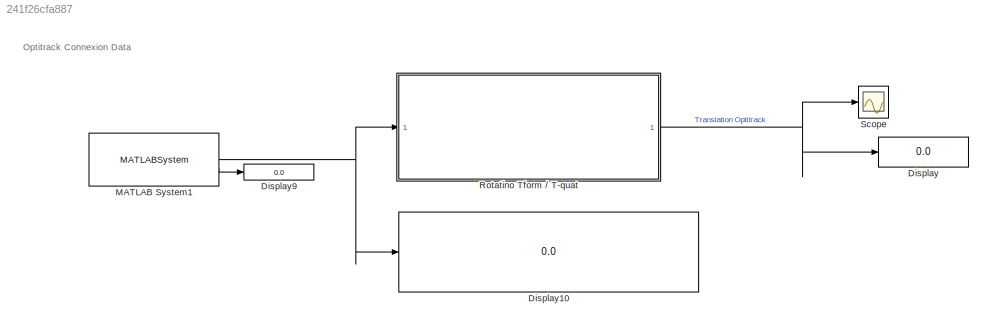
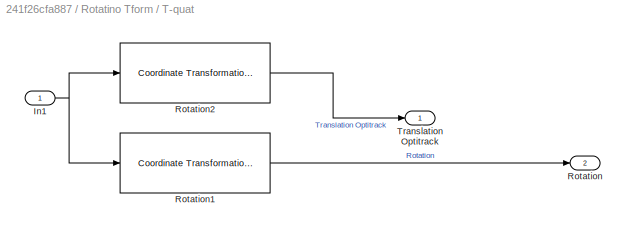
MODEL slx_241f26cfa887
KIND model
CONFIG AbsTol = auto
CONFIG EnableMultiTasking = off
CONFIG FixedStep = auto
CONFIG MaxStep = auto
CONFIG MinStep = auto
CONFIG RelTol = 1e-3
CONFIG SampleTimeConstraint = Unconstrained
CONFIG SolverName = VariableStepAuto
CONFIG StartTime = 0.0
CONFIG StopTime = 10.0
BLOCK [Display] Display
  Decimation = 1
BLOCK [Display] Display10
  Decimation = 1
BLOCK [Display] Display9
  Decimation = 1
BLOCK [MATLABSystem] MATLAB System1
  ClientIP = 127.0.0.1
  HostIP = 127.0.0.1
  MaskDisplay = disp('OptilinkSystem');\nport_label('output',1,'Drones data');\nport_label('output',2,'Connected');
  MaskType = OptilinkSystem
  SimulateUsing = Interpreted execution
  System = OptilinkSystem
BLOCK [SubSystem] Rotatino Tform //  T-quat
BLOCK [Inport] Rotatino Tform //  T-quat/In1
BLOCK [Outport] Rotatino Tform //  T-quat/Rotation
  Port = 2
BLOCK [Reference] Rotatino Tform //  T-quat/Rotation1  REF=robotcorelib/Coordinate Transformation Conversion
  LibrarySourceBlock = uavutilslib/Coordinate Transformation Conversion
  SourceBlock = robotcorelib/Coordinate Transformation Conversion
  SourceType = robotics.slcore.internal.block.CoordinateTransformationConversion
BLOCK [Reference] Rotatino Tform //  T-quat/Rotation2  REF=robotcorelib/Coordinate Transformation Conversion
  LibrarySourceBlock = uavutilslib/Coordinate Transformation Conversion
  SourceBlock = robotcorelib/Coordinate Transformation Conversion
  SourceType = robotics.slcore.internal.block.CoordinateTransformationConversion
BLOCK [Outport] Rotatino Tform //  T-quat/Translation Optitrack
BLOCK [Scope] Scope
  Floating = off
  NumInputPorts = 1
  ScopeSpecificationString = Simulink.scopes.TimeScopeBlockCfg('CurrentConfiguration', extmgr.ConfigurationSet(extmgr.Configuration('Core','General UI',true),extmgr.Configuration('Core','Source UI',true),extmgr.Configuration('Sources','WiredSimulink',true),extmgr.Configuration('Visuals','Time Domain',true),extmgr.Configuration('Tools','Plot Navigation',true),extmgr.Configuration('Tools','Measurements',true)),'Version','2024a'...<+1ch>
ANNOTATION (root): Optitrack Connexion Data
NET MATLAB System1:1 -> Display10:1, Rotatino Tform //  T-quat:1
LINE MATLAB System1:2 -> Display9:1
NET Rotatino Tform //  T-quat/In1:1 -> Rotatino Tform //  T-quat/Rotation1:1, Rotatino Tform //  T-quat/Rotation2:1
LINE Rotatino Tform //  T-quat/Rotation1:1 -> Rotatino Tform //  T-quat/Rotation:1
LINE Rotatino Tform //  T-quat/Rotation2:1 -> Rotatino Tform //  T-quat/Translation Optitrack:1
NET Rotatino Tform //  T-quat:1 -> Display:1, Scope:1
note: NET lines group one-source signal fan-out (src -> all destinations, sorted); 1:1 wires keep LINE
